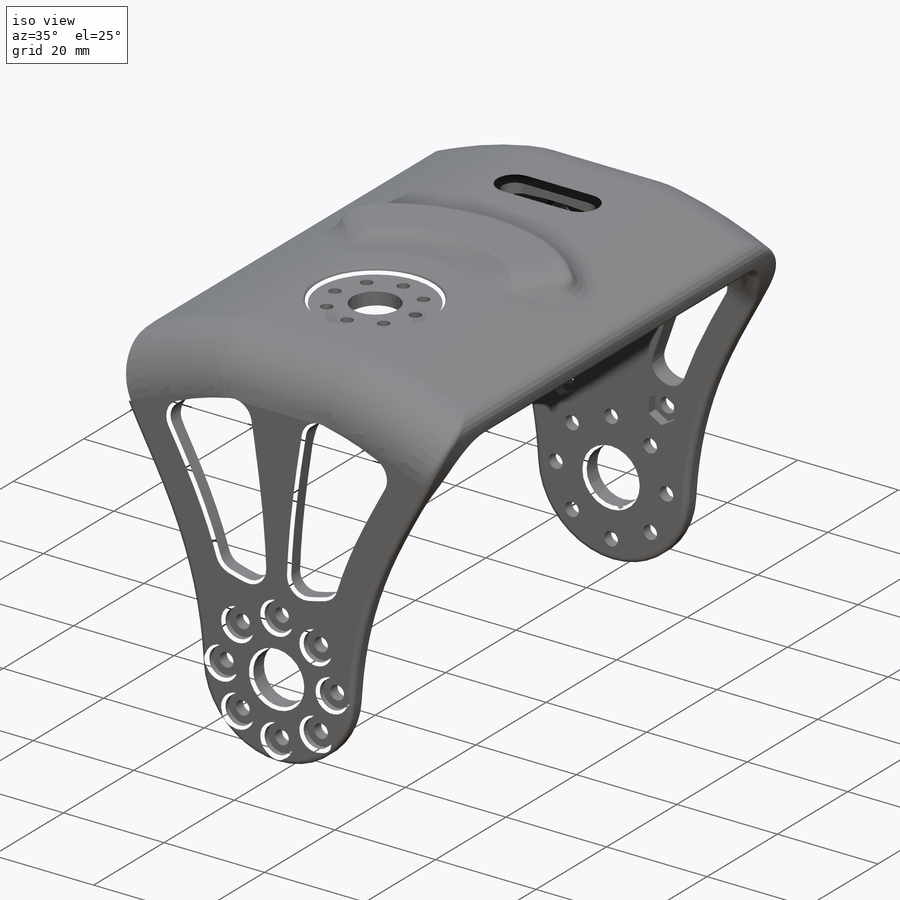
[diagram: iso view]
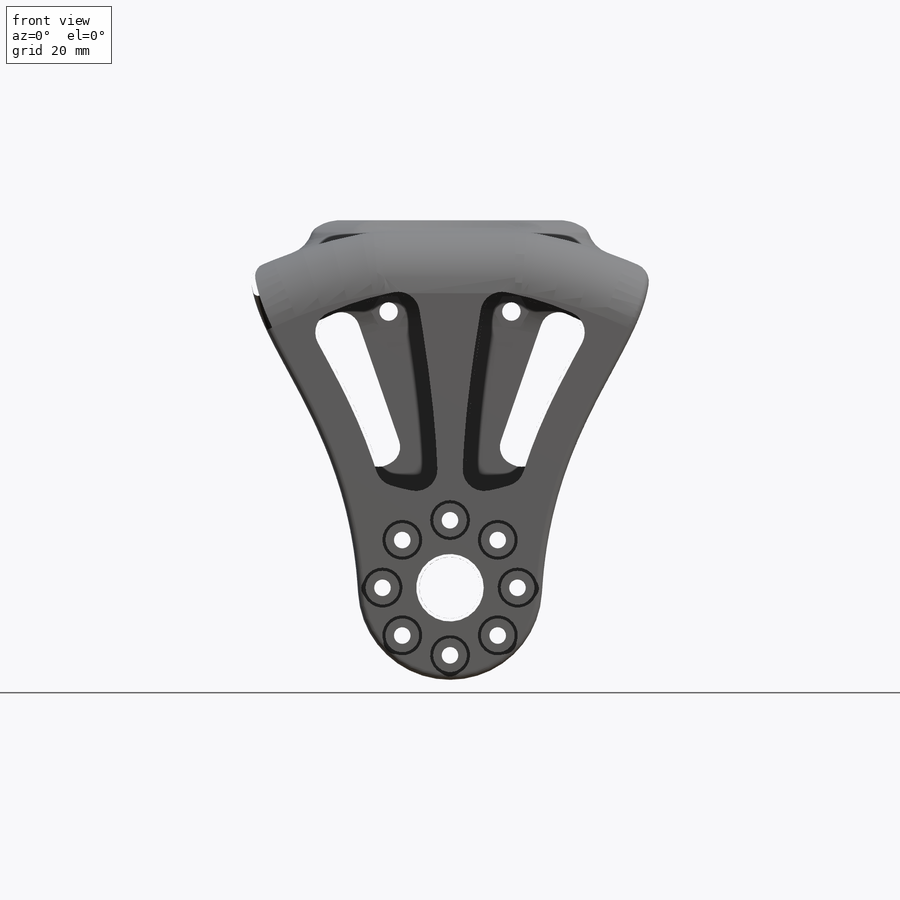
[diagram: front view]
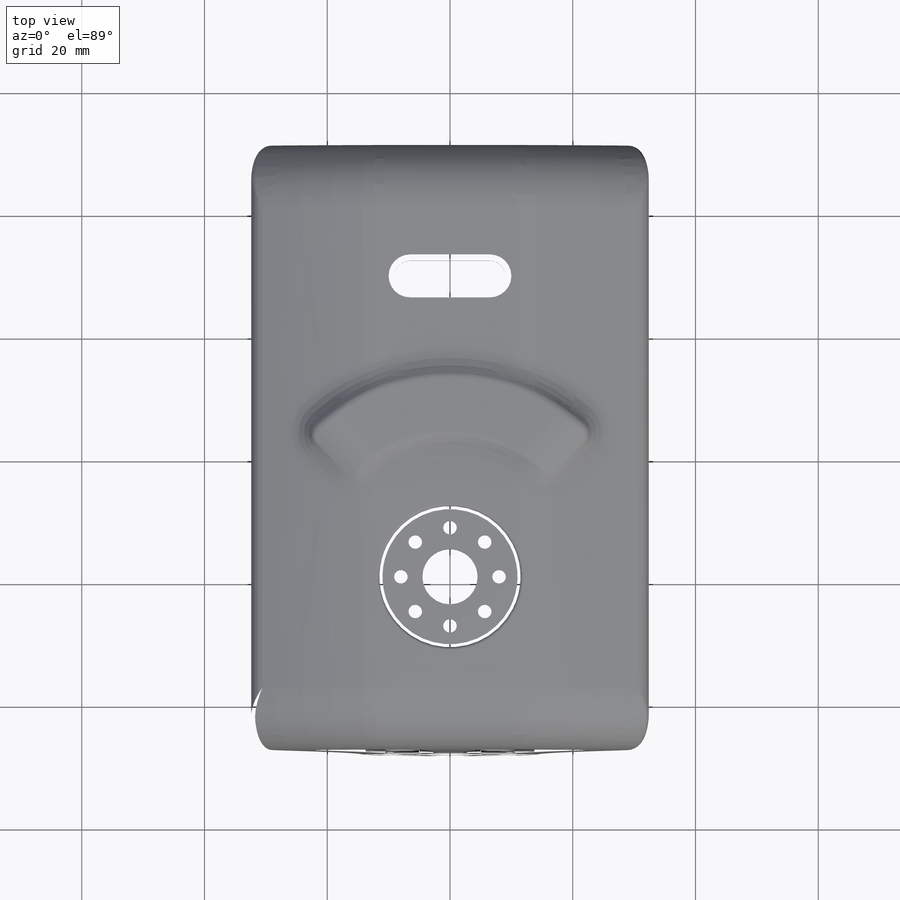
[diagram: top view]
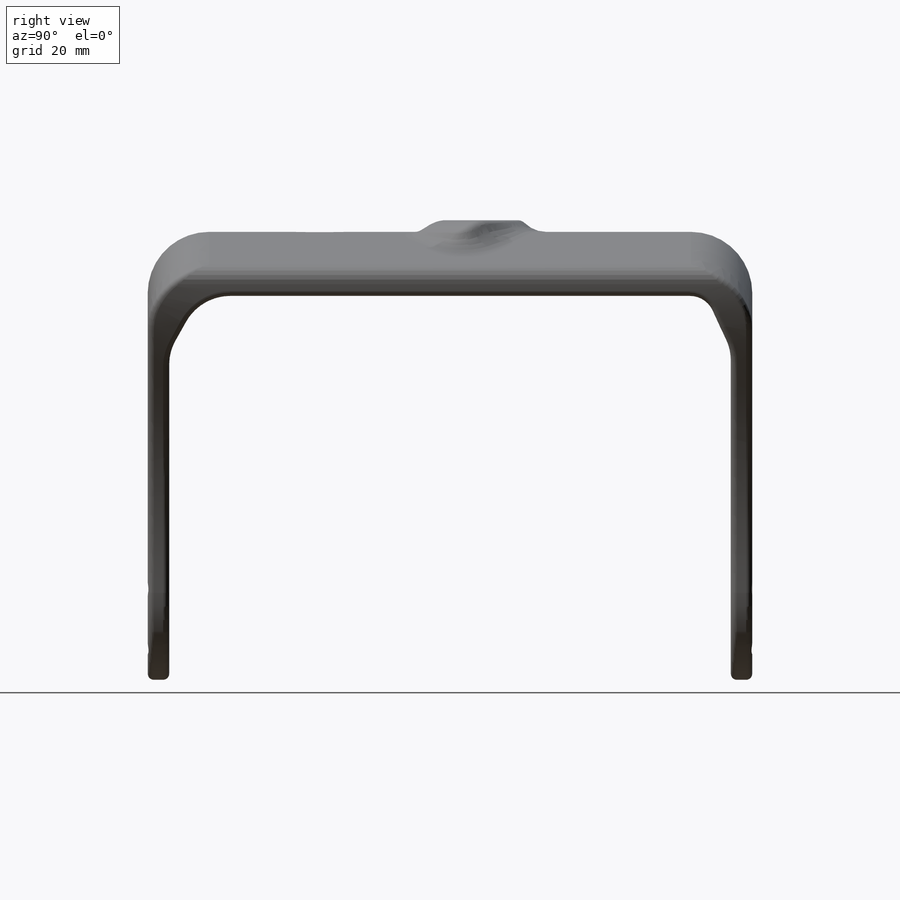
[diagram: right view]
SOLIDWORKS PART (.sldprt)
format: sldprt  version: not decoded by parser v0  size: 2,397,184 bytes
history: native  units: mm
features: sketch x26, fillet x14, cut_extrude x13, plane x11, chamfer x4, hole x2, material x1, revolve x1, mirror x1, extrude x1 + 4 further entries (+12 scaffold rows collapsed; 5 parser-record rows omitted)
feature tree (95):
  scaffold x12  (default folders/planes/origin — collapsed)
  material  "white_polyamide"
  plane  "Plan de face"
  plane  "Plan de dessus"
  plane  "Plan de droite"
  parser-record x5  (decoder bookkeeping rows leaked as tree rows — omitted from the tree; the rows remain in map.json)
  sketch  "abs_y_motor_front_dimensions"  dims[c1.D1=28.0mm c1.D13=2.7mm c1.D2=61.1mm c1.D3=42.5mm c1.D4=12.5mm c1.D5=14.5mm c1.D6=17.3mm c1.D7=20.1mm c1.D8=45.3mm c1.D9=8.5mm c1.D10=17.0mm c1.D11=17.0mm c1.D12=4.5mm c2.D12=~45.13131deg]
  sketch  "abs_y_motor_lateral_dimensions"  dims[D1=17.0mm D2=20.5mm D3=4.5mm]
  plane  "abs_x_front_horn"  Offset=24.5mm
  plane  "abs_x_motor_horn"  Offset=67mm
  plane  "abs_middle_plane"  Offset=20.5mm
  sketch  "abs_x_motor_front_dimensions"  dims[c1.D1=2.0mm c1.D2=22.0mm c1.D12=28.0mm c1.D17=2.7mm c1.D4=~7.011473mm c2.D4=60.0deg c2.D5=61.1mm c2.D6=43.0mm c2.D7=13.0mm c2.D8=45.3mm c2.D9=15.0mm c2.D10=17.3mm c2.D11=20.1mm c2.D13=22.0mm c2.D14=22.0mm c2.D15=11.0mm c2.D16=4.5mm c2.D3=8.0]
  sketch  "abs_x_motor_lateral_dimensions"  dims[D1=4.5mm D2=17.0mm D3=20.5mm]
  sketch  "Sketch4"  dims[D1=3.0mm]
  plane  "Limite Rotation"
  plane  "abs_z_motor_horn"  Offset=2.5mm
  "shape"
  sketch  "Esquisse1"  dims[D1=3.5mm D2=2.0mm D3=18.0mm]
  revolve  "Révolution3"  Angle=70deg
  sketch  "Esquisse3"  dims[c1.D1=28.0mm c1.D2=~63.660938mm c2.D2=25.0deg c2.D3=1.0mm c2.D1=1.0mm]
  cut_extrude  "Enlèv. mat.-Extru.1"  [1 undecoded]
  sketch  "Esquisse37"  dims[c1.D2=38.0mm c1.D3=50.0mm c1.D6=25.0mm c2.D2=38.0mm c2.D3=~30.895346mm c2.D4=5.0mm c2.D5=12.0mm c3.D2=3.0mm c3.D3=2.0mm c3.D1=7.0mm]
  cut_extrude  "Enlèv. mat.-Extru.8"  [1 undecoded]
  fillet  "Congé4"  Radius=20mm
  sketch  "SMPS2Dynamixel"  dims[D5=3.0mm D1=28.0mm D2=54.0mm D3=12.0mm D4=20.0mm D6=15.0mm]
  sketch  "Sketch7"  dims[D1=45.0mm D2=~21.678116mm D4=~25.987474mm D3=5.0mm]
  cut_extrude  "Cut-Extrude4"  [1 undecoded]
  "holes"
  sketch  "Esquisse7"  dims[D1=9.0mm]
  cut_extrude  "Enlèv. mat.-Extru.2"  [1 undecoded]
  sketch  "Esquisse8"  dims[D1=23.0mm]
  cut_extrude  "Enlèv. mat.-Extru.3"  [1 undecoded]
  sketch  "Esquisse9"  dims[c1.D1=16.0mm c1.D2=2.0mm c1.D4=~1.800074mm c1.D5=1.0mm c1.D6=9.0mm c2.D4=~5.513028mm c3.D4=30.0deg c3.D6=0.75mm c3.D3=8.0]
  plane  "Plan6"  Offset=10mm
  hole  "Chambrage pour vis à tête hexagonale M26"  Diameter=2.2mm Depth=11mm
  sketch  "Esquisse26"
  sketch  "Esquisse25"  dims[hole-wizard template sketch: 42 standard entries collapsed; hole parameters kept: c12.Profondeur du perçage jusqu'au prochain=11.0mm c12.Diamètre du chambrage=4.4mm c12.Profondeur du chambrage=8.65mm]
  sketch  "Sketch5"
  cut_extrude  "Cut-Extrude2"  Depth=1.5mm
  hole  "CBORE for  Hex Socket Head Cap Screw0"  Diameter=2.7mm Depth=98.5mm
  sketch  "Esquisse30"
  sketch  "Esquisse29"  dims[hole-wizard template sketch: 42 standard entries collapsed; hole parameters kept: c12.Profondeur du perçage jusqu'au prochain=98.5mm c12.Diamètre du chambrage=5.5mm c12.Profondeur du chambrage=1.5mm c12.Diamètre du fraisage milieu=2.75mm c12.D6=~5.388154mm c12.Angle du fraisage milieu=90.0deg]
  plane  "Plane1"
  mirror  "Mirror1"
  sketch  "Esquisse32"  dims[D1=10.4mm]
  cut_extrude  "Enlèv. mat.-Extru.6"  [1 undecoded]
  sketch  "Sketch1"  dims[c1.D1=~9.72901mm c1.D2=0.75mm c2.D1=1.0mm]
  cut_extrude  "Cut-Extrude1"  Depth=1mm
  sketch  "Esquisse33"  dims[D1=10.0mm]
  cut_extrude  "Enlèv. mat.-Extru.7"  [1 undecoded]
  sketch  "Sketch8"  dims[D1=5.0mm]
  sketch  "Sketch9"
  cut_extrude  "Cut-Extrude6"  [1 undecoded]
  cut_extrude  "Cut-Extrude5"  Depth=1.9mm
  "Support_motor"
  plane  "Support Moteur"  Offset=2.9mm
  sketch  "Esquisse34"  dims[c1.D1=66.0mm c1.D2=10.0mm c1.D3=33.0mm c2.D3=45.0deg]
  extrude  "Boss.-Extru.2"  [1 undecoded]
  sketch  "Esquisse38"  dims[D1=13.0mm D2=5.0mm D3=49.0mm]
  cut_extrude  "Enlèv. mat.-Extru.9"  [1 undecoded]
  chamfer  "Chanfrein5"  Distance=2mm Angle=59deg
  fillet  "Congé12"  Radius=10mm
  fillet  "Congé6"  Radius=2mm
  fillet  "Congé7"  Radius=5mm
  fillet  "Congé8"  Radius=1.5mm
  "smooth"
  chamfer  "Chanfrein2"  Distance=5mm Angle=63deg
  chamfer  "Chanfrein3"  Distance=4mm Angle=67deg
  fillet  "Congé1"  Radius=10mm
  fillet  "Congé2"  Radius=10mm
  fillet  "Congé5"  Radius=0.5mm
  fillet  "Congé13"  Radius=3mm
  fillet  "Congé15"  Radius=2mm
  fillet  "Congé9"  Radius=1mm
  chamfer  "Chanfrein4"  Distance=0.5mm Angle=45deg
  fillet  "Congé10"  Radius=0.5mm
  fillet  "Congé16"  Radius=0.5mm
  fillet  "Congé14"  Radius=1mm
  sketch  "Sketch10"  dims[D1=8.0mm D2=30.0mm]
  cut_extrude  "watermark_Poppy"  Depth=1mm
decode coverage: 47 of 62 modeling features carry decoded parameters; 4 rows unclassified (native names shown)
note: ~ marks probable driven/reference dimensions
note: 10 parameter values undecoded
summary: no parameter record found for 10 features
note: suppression state not decoded; provenance and decode notes live in map.json
